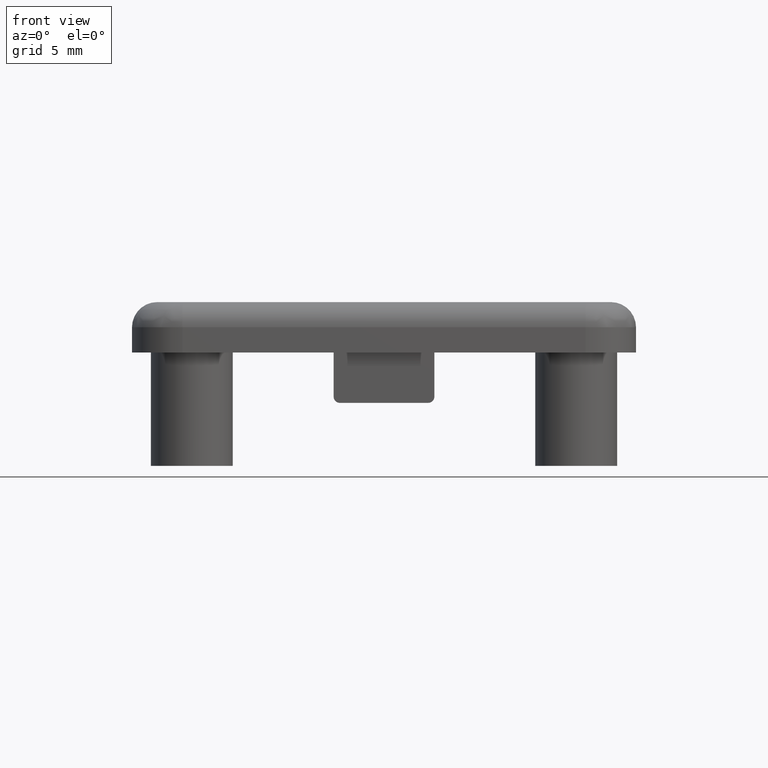
[diagram: clean part render]
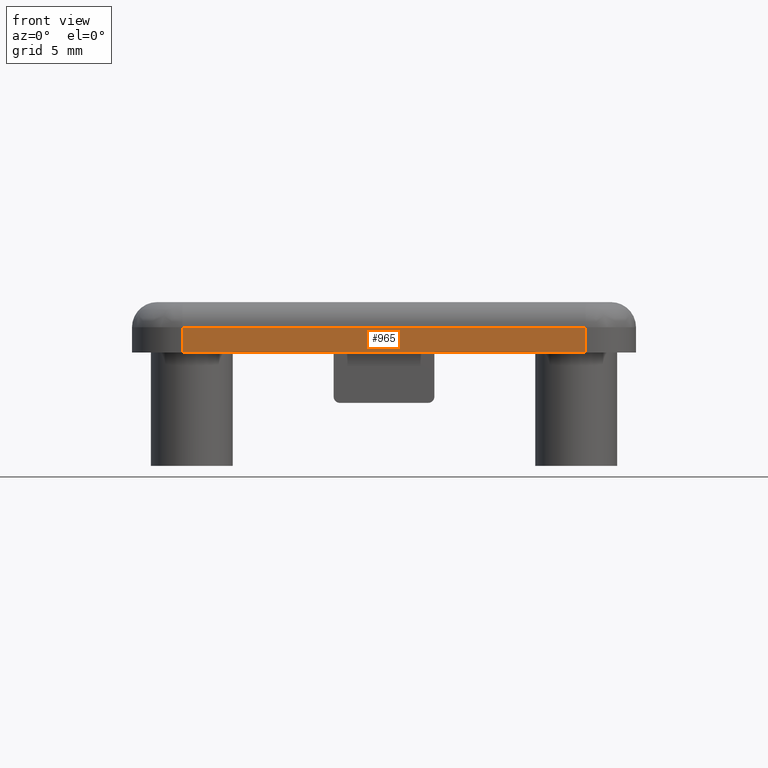
[diagram: same view with one face highlighted and labeled with its STEP entity id]
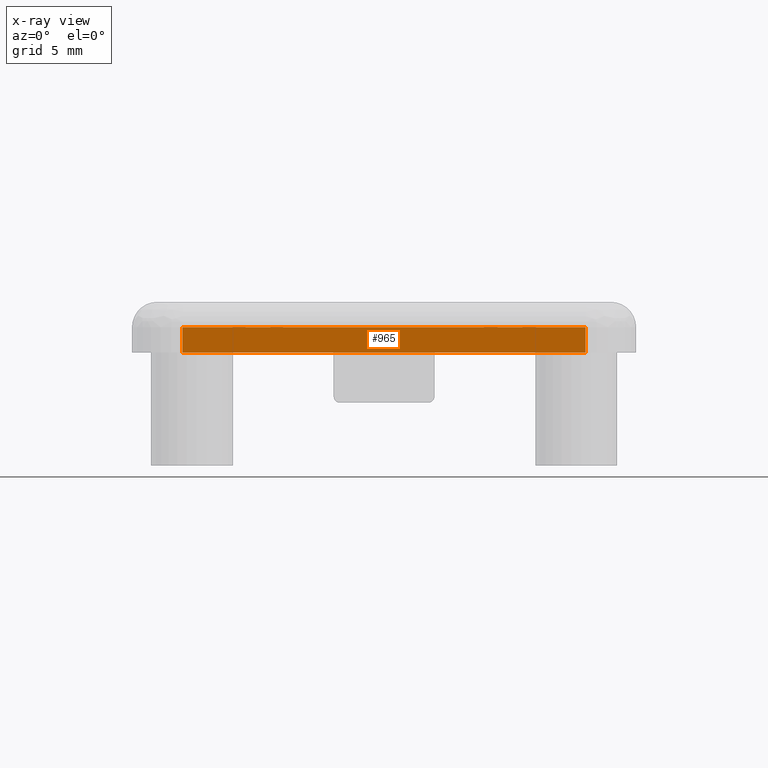
[diagram: x-ray of the same camera — body ghosted, the highlighted face saturated]
A machine part, front view. The second image highlights one B-rep face of the part: STEP entity #965.
The next image is the same camera in x-ray: the body ghosted, the highlighted face saturated — about 0% of this face is hidden behind the body in this view.
In plain terms, the highlighted planar face has unit normal (0, -1, 0).
Its self-contained STEP definition (entity closure, byte-faithful):
#63=PLANE('',#1103);
#123=FACE_OUTER_BOUND('',#201,.T.);
#201=EDGE_LOOP('',(#863,#864,#865,#866));
#223=LINE('',#1466,#293);
#259=LINE('',#1648,#329);
#271=LINE('',#1715,#341);
#272=LINE('',#1718,#342);
#293=VECTOR('',#1153,32.);
#329=VECTOR('',#1353,32.);
#341=VECTOR('',#1401,2.);
#342=VECTOR('',#1406,2.);
#421=VERTEX_POINT('',#1462);
#423=VERTEX_POINT('',#1465);
#476=VERTEX_POINT('',#1641);
#478=VERTEX_POINT('',#1646);
#512=EDGE_CURVE('',#421,#423,#223,.T.);
#592=EDGE_CURVE('',#478,#476,#259,.T.);
#615=EDGE_CURVE('',#476,#421,#271,.T.);
#616=EDGE_CURVE('',#423,#478,#272,.T.);
#863=ORIENTED_EDGE('',*,*,#592,.F.);
#864=ORIENTED_EDGE('',*,*,#616,.F.);
#865=ORIENTED_EDGE('',*,*,#512,.F.);
#866=ORIENTED_EDGE('',*,*,#615,.F.);
#965=ADVANCED_FACE('',(#123),#63,.T.);
#1103=AXIS2_PLACEMENT_3D('',#1717,#1404,#1405);
#1153=DIRECTION('',(-1.,-1.66533453693774E-16,0.));
#1353=DIRECTION('',(1.,1.66533453693774E-16,0.));
#1401=DIRECTION('',(0.,0.,-1.));
#1404=DIRECTION('center_axis',(1.66533453693774E-16,-1.,0.));
#1405=DIRECTION('ref_axis',(1.,1.66533453693774E-16,0.));
#1406=DIRECTION('',(0.,0.,1.));
#1462=CARTESIAN_POINT('',(16.,-20.,0.));
#1465=CARTESIAN_POINT('',(-16.,-20.,0.));
#1466=CARTESIAN_POINT('',(20.,-20.,0.));
#1641=CARTESIAN_POINT('',(16.,-20.,2.));
#1646=CARTESIAN_POINT('',(-16.,-20.,2.));
#1648=CARTESIAN_POINT('',(-9.99999999999999,-20.,2.));
#1715=CARTESIAN_POINT('',(16.,-20.,0.));
#1717=CARTESIAN_POINT('Origin',(-20.,-20.,0.));
#1718=CARTESIAN_POINT('',(-16.,-20.,0.));